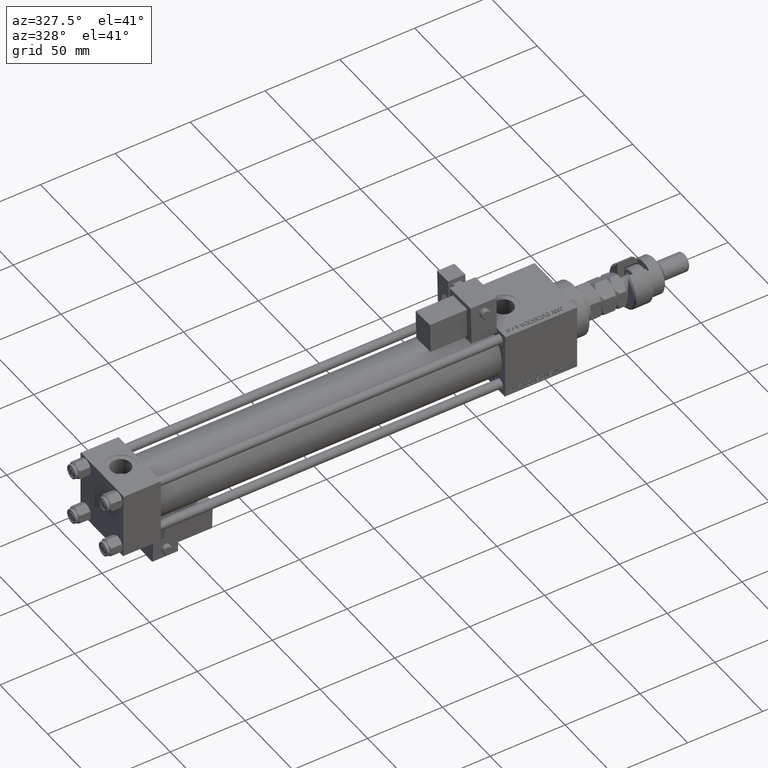
[diagram: clean part render]
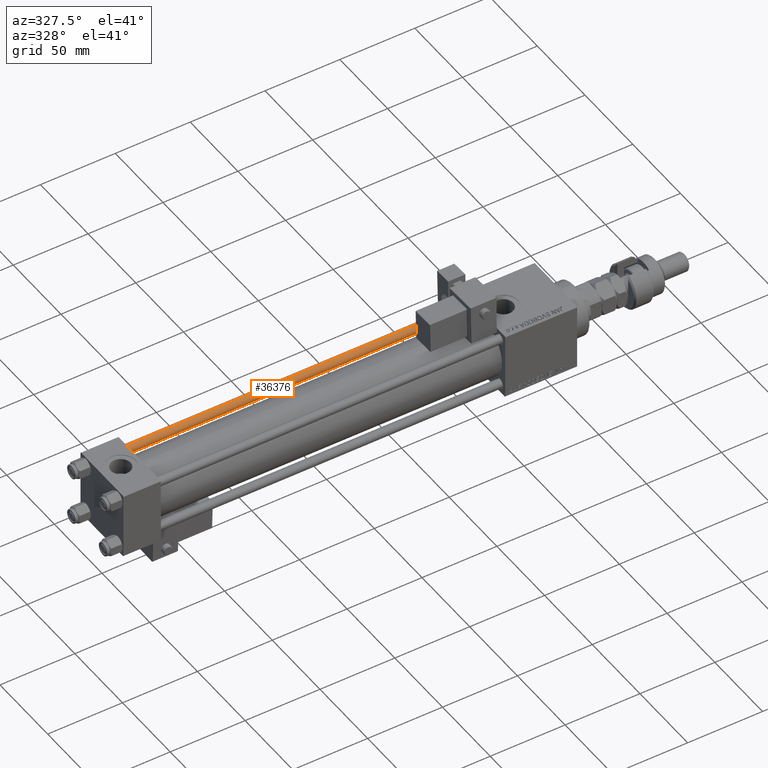
[diagram: same view with one face highlighted and labeled with its STEP entity id]
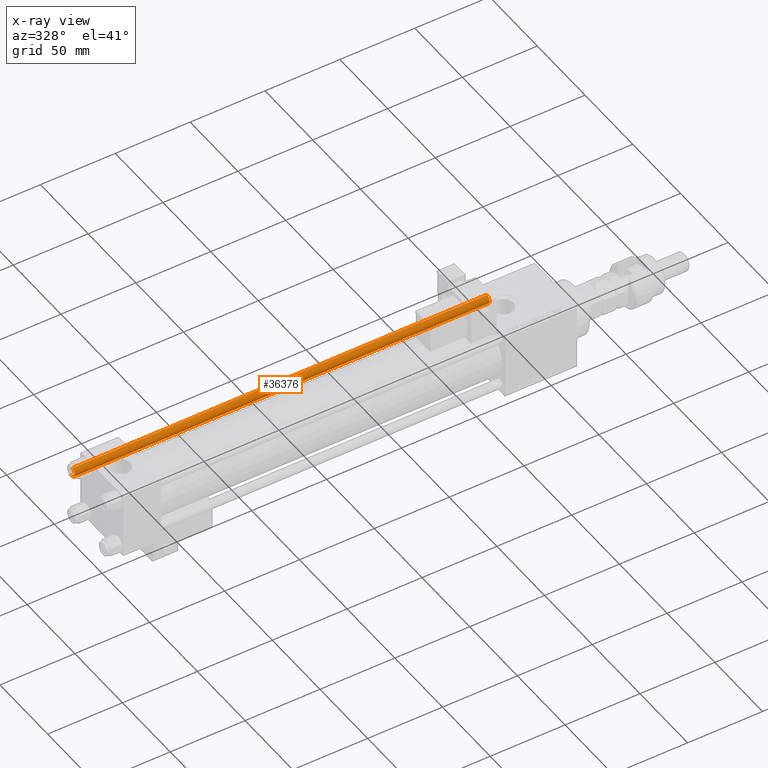
[diagram: x-ray of the same camera — body ghosted, the highlighted face saturated]
A machine part, auxiliary view. The second image highlights one B-rep face of the part: STEP entity #36376.
The next image is the same camera in x-ray: the body ghosted, the highlighted face saturated — about 0% of this face is hidden behind the body in this view.
In plain terms, the highlighted cylindrical surface (edge-blend (fillet) strip) has radius 3 mm, axis along (-1, 0, 0).
Its self-contained STEP definition (entity closure, byte-faithful):
#1353 = VERTEX_POINT ( 'NONE', #33130 ) ;
#1404 = VERTEX_POINT ( 'NONE', #24149 ) ;
#2973 = VECTOR ( 'NONE', #45772, 1000.000000000000000 ) ;
#6117 = CARTESIAN_POINT ( 'NONE',  ( -3.000000000000000444, 0.000000000000000000, 0.5000000000000559552 ) ) ;
#6665 = VECTOR ( 'NONE', #41829, 1000.000000000000000 ) ;
#9030 = CARTESIAN_POINT ( 'NONE',  ( 0.000000000000000000, 0.000000000000000000, 278.0000000000000000 ) ) ;
#9369 = DIRECTION ( 'NONE',  ( -0.000000000000000000, -0.000000000000000000, 1.000000000000000000 ) ) ;
#10054 = CARTESIAN_POINT ( 'NONE',  ( -3.000000000000000444, 0.000000000000000000, 278.0000000000000000 ) ) ;
#10996 = VERTEX_POINT ( 'NONE', #6117 ) ;
#15216 = ORIENTED_EDGE ( 'NONE', *, *, #52667, .T. ) ;
#17934 = AXIS2_PLACEMENT_3D ( 'NONE', #48180, #24696, #25265 ) ;
#18038 = EDGE_CURVE ( 'NONE', #10996, #1404, #23193, .T. ) ;
#18620 = CARTESIAN_POINT ( 'NONE',  ( 3.000000000000000444, 3.673940397442060361E-16, 278.0000000000000000 ) ) ;
#18890 = CIRCLE ( 'NONE', #17934, 3.000000000000000444 ) ;
#21838 = CYLINDRICAL_SURFACE ( 'NONE', #56292, 3.000000000000000444 ) ;
#23193 = CIRCLE ( 'NONE', #43579, 3.000000000000000444 ) ;
#24149 = CARTESIAN_POINT ( 'NONE',  ( 3.000000000000000444, 3.673940397442060361E-16, 0.5000000000000559552 ) ) ;
#24696 = DIRECTION ( 'NONE',  ( 0.000000000000000000, 0.000000000000000000, -1.000000000000000000 ) ) ;
#25265 = DIRECTION ( 'NONE',  ( 1.000000000000000000, 0.000000000000000000, 0.000000000000000000 ) ) ;
#25889 = FACE_OUTER_BOUND ( 'NONE', #46453, .T. ) ;
#33130 = CARTESIAN_POINT ( 'NONE',  ( 3.000000000000000444, 3.673940397442060361E-16, 277.5000000000000568 ) ) ;
#34913 = ORIENTED_EDGE ( 'NONE', *, *, #46675, .T. ) ;
#36376 = ADVANCED_FACE ( 'NONE', ( #25889 ), #21838, .T. ) ;
#36702 = ORIENTED_EDGE ( 'NONE', *, *, #18038, .T. ) ;
#39162 = CARTESIAN_POINT ( 'NONE',  ( -3.000000000000000444, 0.000000000000000000, 277.5000000000000568 ) ) ;
#40535 = LINE ( 'NONE', #10054, #2973 ) ;
#41829 = DIRECTION ( 'NONE',  ( -0.000000000000000000, -0.000000000000000000, -1.000000000000000000 ) ) ;
#43579 = AXIS2_PLACEMENT_3D ( 'NONE', #48869, #9369, #44798 ) ;
#44456 = DIRECTION ( 'NONE',  ( -1.000000000000000000, 0.000000000000000000, 0.000000000000000000 ) ) ;
#44798 = DIRECTION ( 'NONE',  ( 1.000000000000000000, 0.000000000000000000, 0.000000000000000000 ) ) ;
#45772 = DIRECTION ( 'NONE',  ( -0.000000000000000000, -0.000000000000000000, -1.000000000000000000 ) ) ;
#46050 = EDGE_CURVE ( 'NONE', #1353, #1404, #49973, .T. ) ;
#46453 = EDGE_LOOP ( 'NONE', ( #57226, #15216, #34913, #36702 ) ) ;
#46675 = EDGE_CURVE ( 'NONE', #53846, #10996, #40535, .T. ) ;
#48180 = CARTESIAN_POINT ( 'NONE',  ( 0.000000000000000000, 0.000000000000000000, 277.5000000000000568 ) ) ;
#48535 = DIRECTION ( 'NONE',  ( -0.000000000000000000, -0.000000000000000000, -1.000000000000000000 ) ) ;
#48869 = CARTESIAN_POINT ( 'NONE',  ( 0.000000000000000000, 0.000000000000000000, 0.5000000000000559552 ) ) ;
#49973 = LINE ( 'NONE', #18620, #6665 ) ;
#52667 = EDGE_CURVE ( 'NONE', #1353, #53846, #18890, .T. ) ;
#53846 = VERTEX_POINT ( 'NONE', #39162 ) ;
#56292 = AXIS2_PLACEMENT_3D ( 'NONE', #9030, #48535, #44456 ) ;
#57226 = ORIENTED_EDGE ( 'NONE', *, *, #46050, .F. ) ;